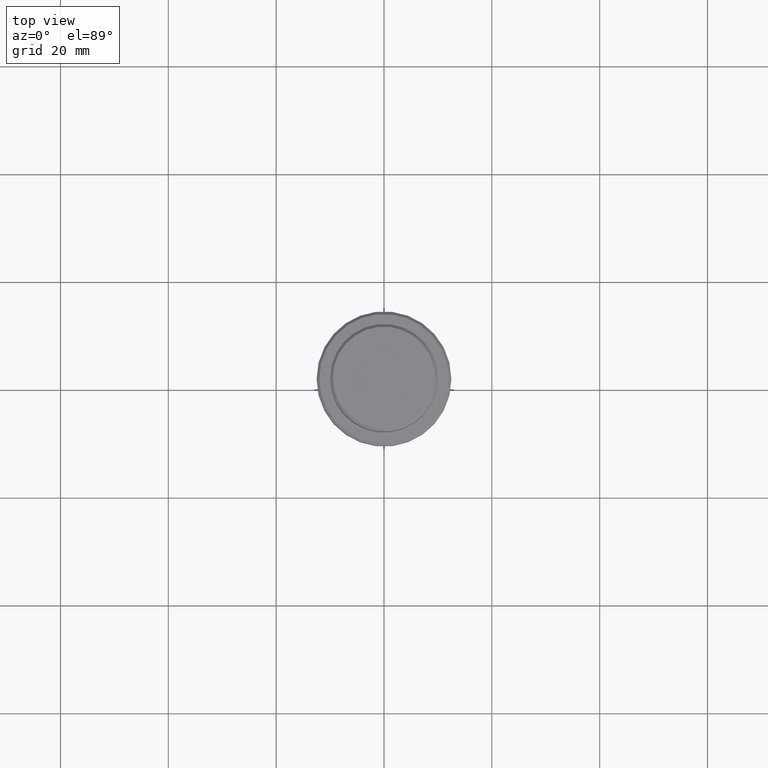
[diagram: clean part render]
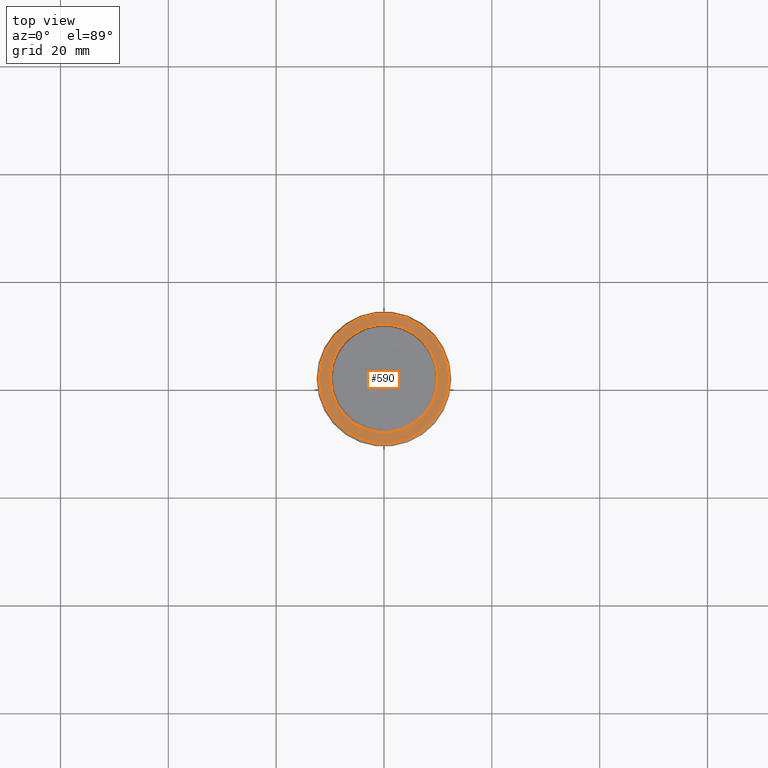
[diagram: same view with one face highlighted and labeled with its STEP entity id]
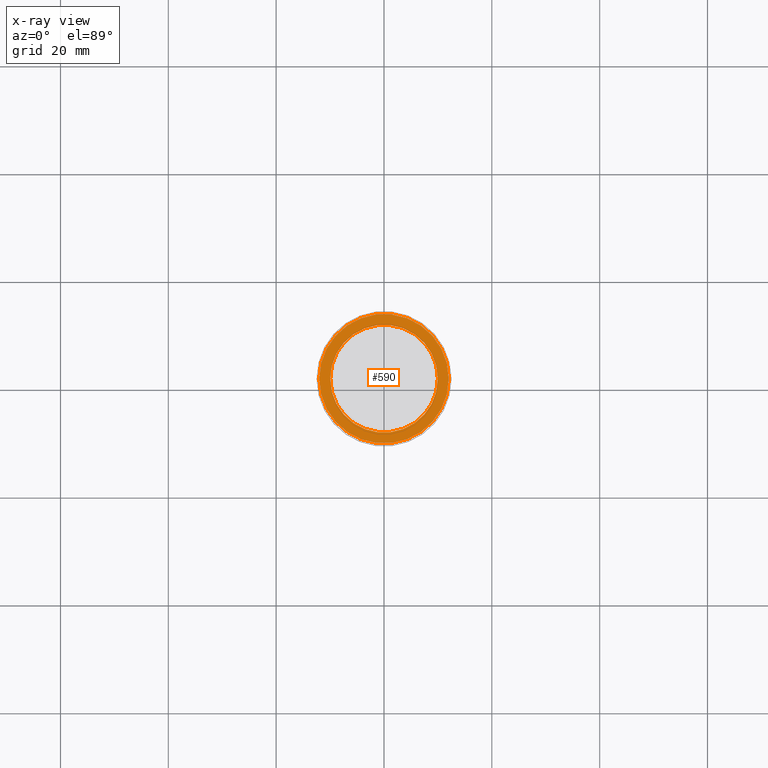
[diagram: x-ray of the same camera — body ghosted, the highlighted face saturated]
A machine part, top view. The second image highlights one B-rep face of the part: STEP entity #590.
The next image is the same camera in x-ray: the body ghosted, the highlighted face saturated — about 0% of this face is hidden behind the body in this view.
In plain terms, the highlighted planar face has unit normal (0, -0, 1).
Its self-contained STEP definition (entity closure, byte-faithful):
#28 = EDGE_LOOP ( 'NONE', ( #392, #402 ) ) ;
#73 = VERTEX_POINT ( 'NONE', #814 ) ;
#182 = DIRECTION ( 'NONE',  ( 1.000000000000000000, 0.000000000000000000, 0.000000000000000000 ) ) ;
#227 = CARTESIAN_POINT ( 'NONE',  ( 9.999999999999994671, 0.000000000000000000, -9.000000000000001776 ) ) ;
#259 = CIRCLE ( 'NONE', #1112, 9.999999999999994671 ) ;
#271 = FACE_OUTER_BOUND ( 'NONE', #28, .T. ) ;
#275 = AXIS2_PLACEMENT_3D ( 'NONE', #1020, #330, #901 ) ;
#301 = DIRECTION ( 'NONE',  ( 0.000000000000000000, 0.000000000000000000, -1.000000000000000000 ) ) ;
#329 = CARTESIAN_POINT ( 'NONE',  ( 12.00000000000001066, 1.500192328955508326E-15, -9.000000000000001776 ) ) ;
#330 = DIRECTION ( 'NONE',  ( -0.000000000000000000, -0.000000000000000000, 1.000000000000000000 ) ) ;
#392 = ORIENTED_EDGE ( 'NONE', *, *, #424, .T. ) ;
#396 = ORIENTED_EDGE ( 'NONE', *, *, #513, .T. ) ;
#402 = ORIENTED_EDGE ( 'NONE', *, *, #1144, .T. ) ;
#421 = CIRCLE ( 'NONE', #670, 12.00000000000001066 ) ;
#423 = CARTESIAN_POINT ( 'NONE',  ( 0.000000000000000000, 0.000000000000000000, -9.000000000000001776 ) ) ;
#424 = EDGE_CURVE ( 'NONE', #73, #858, #877, .T. ) ;
#513 = EDGE_CURVE ( 'NONE', #1200, #775, #1179, .T. ) ;
#517 = DIRECTION ( 'NONE',  ( -0.000000000000000000, -0.000000000000000000, 1.000000000000000000 ) ) ;
#590 = ADVANCED_FACE ( 'NONE', ( #271, #1135 ), #612, .T. ) ;
#595 = DIRECTION ( 'NONE',  ( 0.000000000000000000, 0.000000000000000000, -1.000000000000000000 ) ) ;
#612 = PLANE ( 'NONE',  #879 ) ;
#670 = AXIS2_PLACEMENT_3D ( 'NONE', #1172, #517, #182 ) ;
#692 = CARTESIAN_POINT ( 'NONE',  ( 0.000000000000000000, 9.499999999999994671, -9.000000000000001776 ) ) ;
#709 = DIRECTION ( 'NONE',  ( 1.000000000000000000, 0.000000000000000000, 0.000000000000000000 ) ) ;
#725 = CARTESIAN_POINT ( 'NONE',  ( -9.999999999999994671, 1.224646799147352665E-15, -9.000000000000001776 ) ) ;
#737 = AXIS2_PLACEMENT_3D ( 'NONE', #825, #595, #709 ) ;
#775 = VERTEX_POINT ( 'NONE', #227 ) ;
#814 = CARTESIAN_POINT ( 'NONE',  ( -12.00000000000001066, 0.000000000000000000, -9.000000000000001776 ) ) ;
#825 = CARTESIAN_POINT ( 'NONE',  ( 0.000000000000000000, 0.000000000000000000, -9.000000000000001776 ) ) ;
#858 = VERTEX_POINT ( 'NONE', #329 ) ;
#877 = CIRCLE ( 'NONE', #275, 12.00000000000001066 ) ;
#879 = AXIS2_PLACEMENT_3D ( 'NONE', #692, #1026, #1151 ) ;
#901 = DIRECTION ( 'NONE',  ( 1.000000000000000000, 0.000000000000000000, 0.000000000000000000 ) ) ;
#1020 = CARTESIAN_POINT ( 'NONE',  ( 0.000000000000000000, 0.000000000000000000, -9.000000000000001776 ) ) ;
#1023 = ORIENTED_EDGE ( 'NONE', *, *, #1173, .T. ) ;
#1026 = DIRECTION ( 'NONE',  ( 0.000000000000000000, -0.000000000000000000, 1.000000000000000000 ) ) ;
#1055 = EDGE_LOOP ( 'NONE', ( #1023, #396 ) ) ;
#1112 = AXIS2_PLACEMENT_3D ( 'NONE', #423, #301, #1285 ) ;
#1135 = FACE_BOUND ( 'NONE', #1055, .T. ) ;
#1144 = EDGE_CURVE ( 'NONE', #858, #73, #421, .T. ) ;
#1151 = DIRECTION ( 'NONE',  ( 1.000000000000000000, 0.000000000000000000, 0.000000000000000000 ) ) ;
#1172 = CARTESIAN_POINT ( 'NONE',  ( 0.000000000000000000, 0.000000000000000000, -9.000000000000001776 ) ) ;
#1173 = EDGE_CURVE ( 'NONE', #775, #1200, #259, .T. ) ;
#1179 = CIRCLE ( 'NONE', #737, 9.999999999999994671 ) ;
#1200 = VERTEX_POINT ( 'NONE', #725 ) ;
#1285 = DIRECTION ( 'NONE',  ( 1.000000000000000000, 0.000000000000000000, 0.000000000000000000 ) ) ;